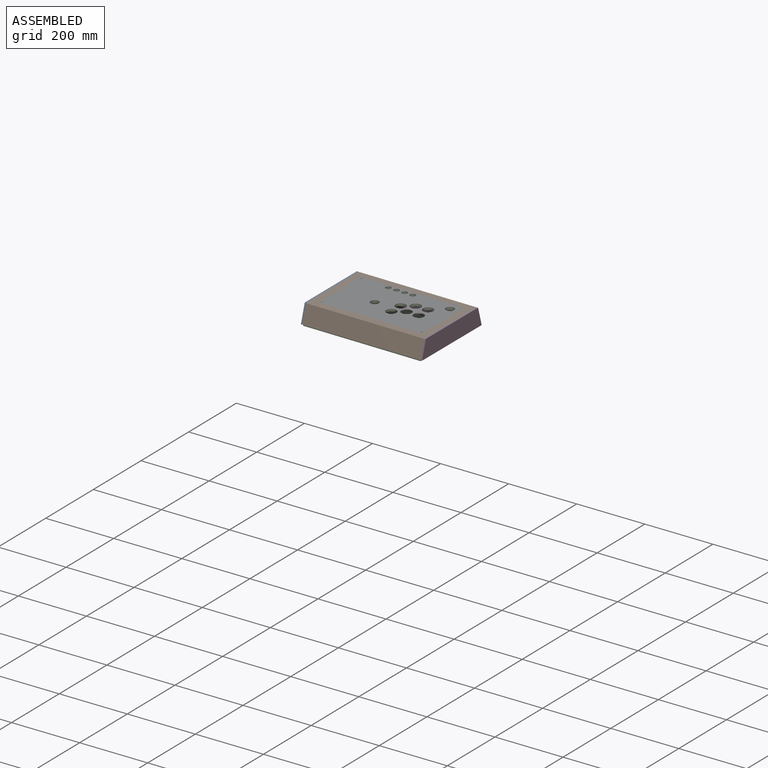
[diagram: assembled view]
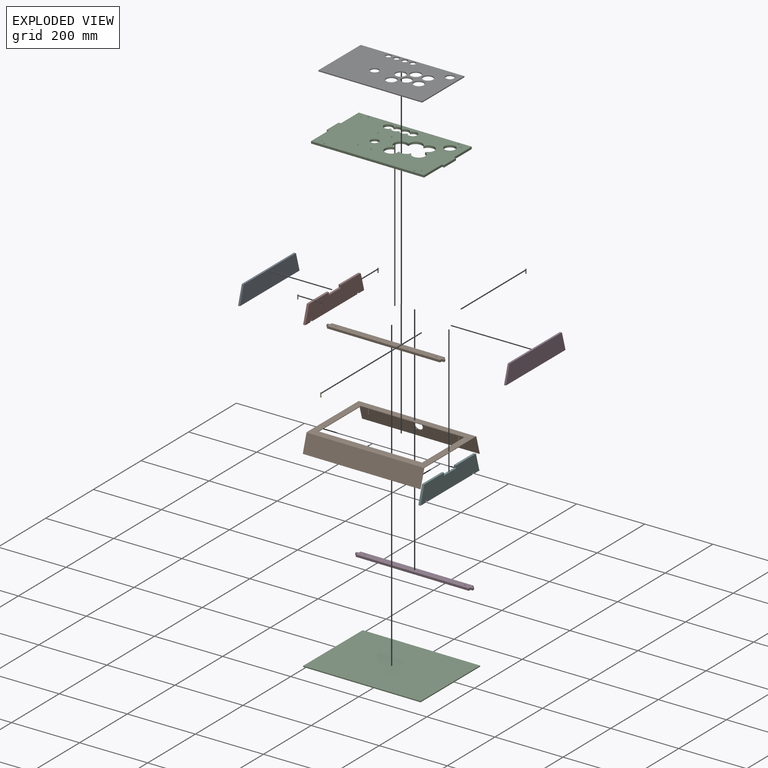
[diagram: exploded view]
GUIDED TOUR — MATED ASSEMBLY (Onshape document 57294a75e4b077d8431a446f, AutoMate assembly 57294a75e4b077d8431a446f_9091b2ce114d2cf201046c30_cba73d0e6dbbc84711c976d8_default)

This assembly has 14 components, labeled P0..P13 below (a component is one placed occurrence of a part; the same part can appear more than once), held together by 13 mates. A mate is a constraint between two components; its type names the relative motion it leaves free:
  FASTENED — locks the two components together rigidly (no relative motion).
Axis/direction vectors are unit vectors and 'through' points are millimeter coordinates, both in the assembly's world frame.

MATES
  1. FASTENED "Fastened 4": P6 <-> P2, direction (-0.005, -0.003, -1.000) through (135.00, -40.55, 36.70) mm
  2. FASTENED "Fastened 8": P0 <-> P6, direction (0.005, 0.003, 1.000) through (30.72, 52.47, 39.93) mm
  3. FASTENED "Fastened 9": P10 <-> P13, direction (0.005, 0.003, 1.000) through (349.32, -154.11, -13.25) mm
  4. FASTENED "Fastened 12": P1 <-> P8, direction (-1.000, 0.000, 0.005) through (4.64, -138.81, 40.61) mm
  5. FASTENED "Fastened 5": P12 <-> P6, direction (-0.005, -0.003, -1.000) through (323.51, -113.35, 38.99) mm
  6. FASTENED "Fastened 7": P4 <-> P6, direction (0.005, 0.003, 1.000) through (323.52, 52.45, 38.50) mm
  7. FASTENED "Fastened 10": P2 <-> P1, direction (0.005, 0.003, 1.000) through (309.56, -123.36, 36.09) mm
  8. FASTENED "Top Glue": P2 <-> P13, direction (-0.005, -0.003, -1.000) through (349.53, -30.48, 29.22) mm
  9. FASTENED "Fastened 11": P1 <-> P11, direction (1.000, 0.000, -0.005) through (349.59, 78.12, 38.28) mm
  10. FASTENED "Fastened 1": P7 <-> P3, direction (-0.005, -0.003, -1.000) through (4.43, 67.46, -5.82) mm
  11. FASTENED "Fastened 6": P5 <-> P6, direction (-0.005, -0.003, -1.000) through (30.71, -113.33, 40.42) mm
  12. FASTENED "Fastened 3": P9 <-> P13, direction (0.005, 0.003, 1.000) through (349.35, -128.61, -6.93) mm
  13. FASTENED "Fastened 2": P9 <-> P7, direction (0.005, 0.003, 1.000) through (4.42, -128.58, -5.24) mm

ASSEMBLY ORDER
  1. P7 — the base component [order verified]
  2. P1 [order verified]
  3. P2 [order verified]
  4. P13 [order verified]
  5. P4 [order verified]
  6. P12 [order verified]
  7. P0 [order verified]
  8. P5 [order verified]
  9. P6 [order verified]
  10. P9 [order verified]
  11. P3 [order verified]
  12. P10 [order verified]
  13. P8 [order verified]
  14. P11 [order verified]
Order-tag legend:
  [order verified] — this step's position reverses a verified removal order: the component was checked to insert without passing through the ones already placed.

Of the 14 components, 0 carry the full construction recipe — the FeatureScript program that regenerates the part's solid from scratch; the rest are supplied as boundary geometry only.
Because this assembly has more than 12 components, the tour below covers the 12 most significant ones individually (every recipe-attached component first, then the largest by part volume), in assembly order; the remaining 2 are summarized together in a grouped section at the end.
Each toured component is shown spotlighted twice — in the assembled view, then in the exploded view, where a leader line traces a displaced component back to its assembled socket (saturated green if recipe-attached, orange if geometry-only; every other component desaturated gray) — followed by its recipe or geometry summary and the mates that hold it.
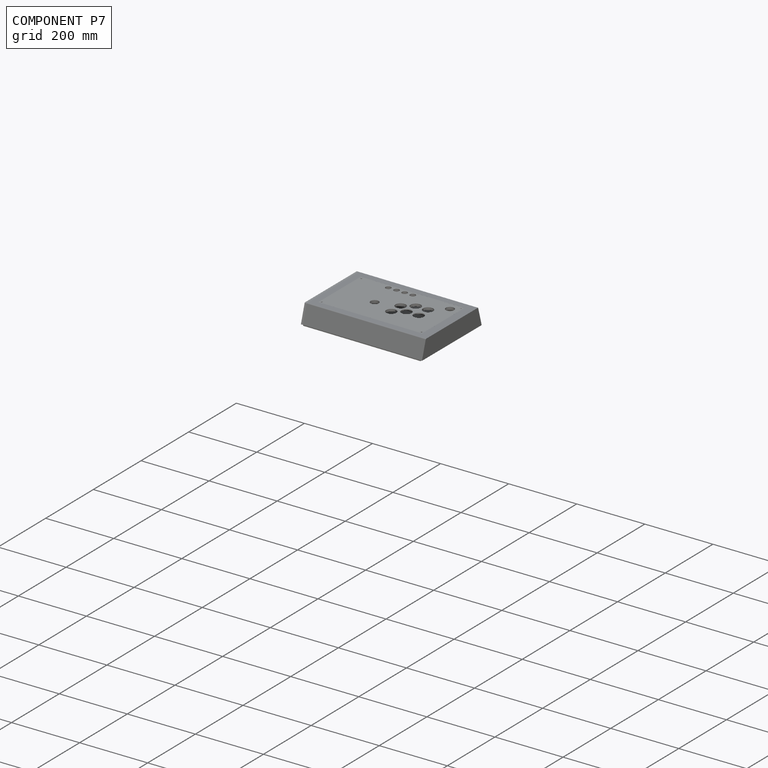
[diagram: component P7 — assembled]
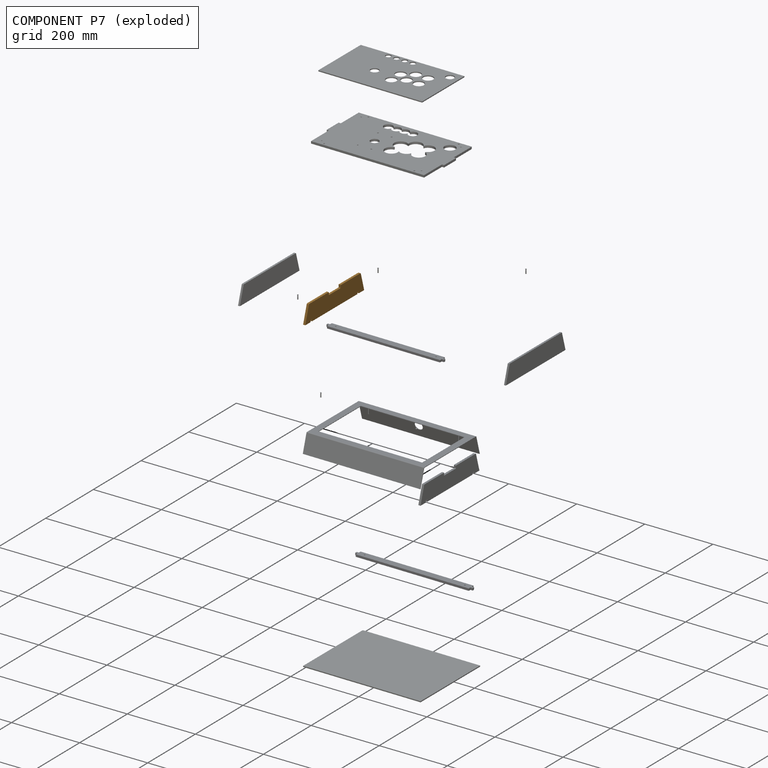
[diagram: component P7 — exploded]
COMPONENT P7 — geometry summary (no construction recipe available for this part):
  bounding box: 247.0 x 50.6 x 6.4 mm
  B-rep topology: 1 solid, 20 faces, 108 edges
  volume: 72184 mm^3 (90% of its bounding box)
  symmetry: 2-fold rotationally symmetric about the z axis; mirror-symmetric across its x mid-plane, y mid-plane
Held by: FASTENED mate "Fastened 1" to P3; FASTENED mate "Fastened 2" to P9.
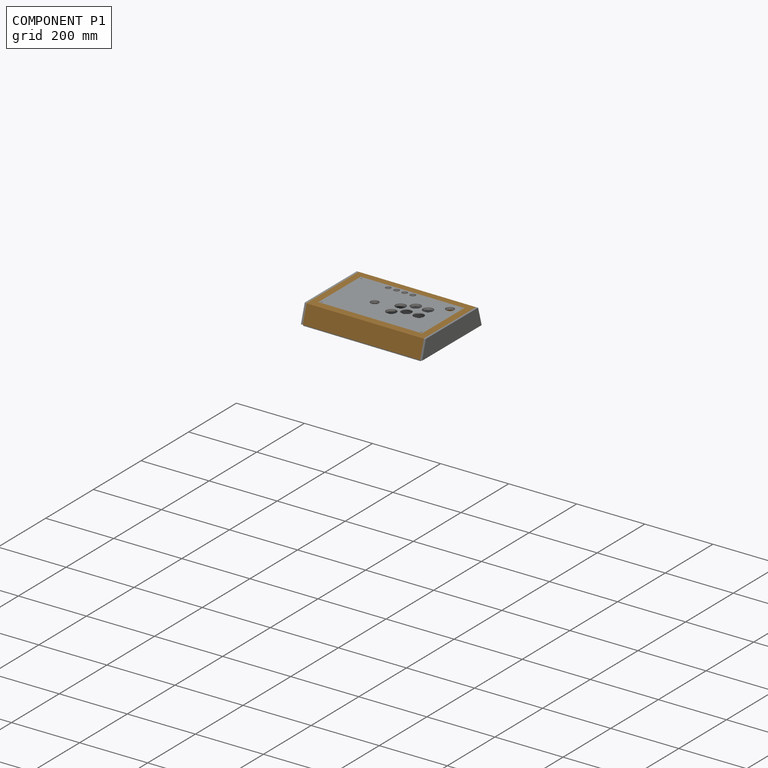
[diagram: component P1 — assembled]
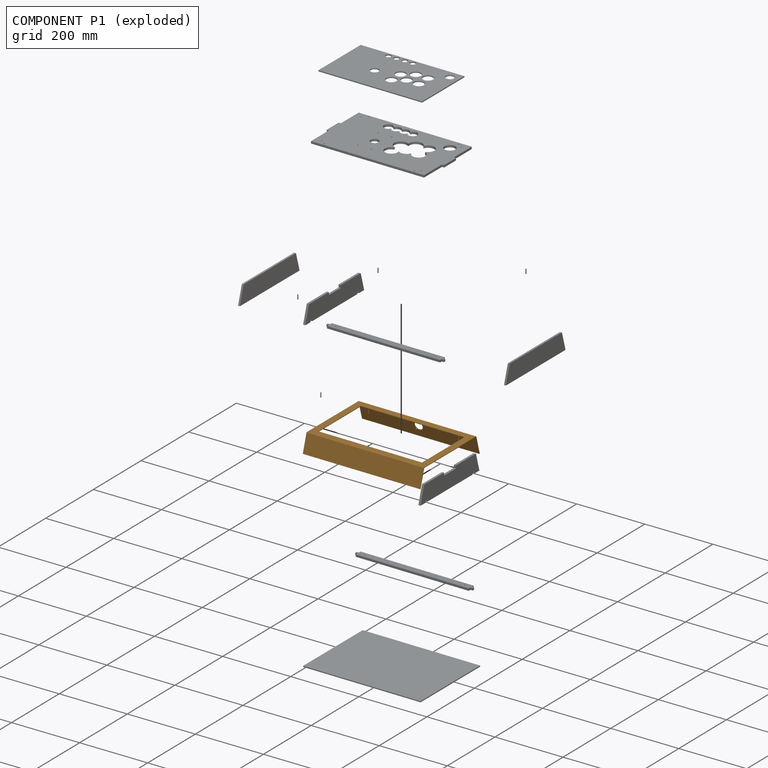
[diagram: component P1 — exploded]
COMPONENT P1 — geometry summary (no construction recipe available for this part):
  bounding box: 344.9 x 250.0 x 52.2 mm
  B-rep topology: 1 solid, 29 faces, 138 edges
  volume: 91745 mm^3 (2% of its bounding box)
  symmetry: mirror-symmetric across its x mid-plane
Held by: FASTENED mate "Fastened 12" to P8; FASTENED mate "Fastened 10" to P2; FASTENED mate "Fastened 11" to P11.
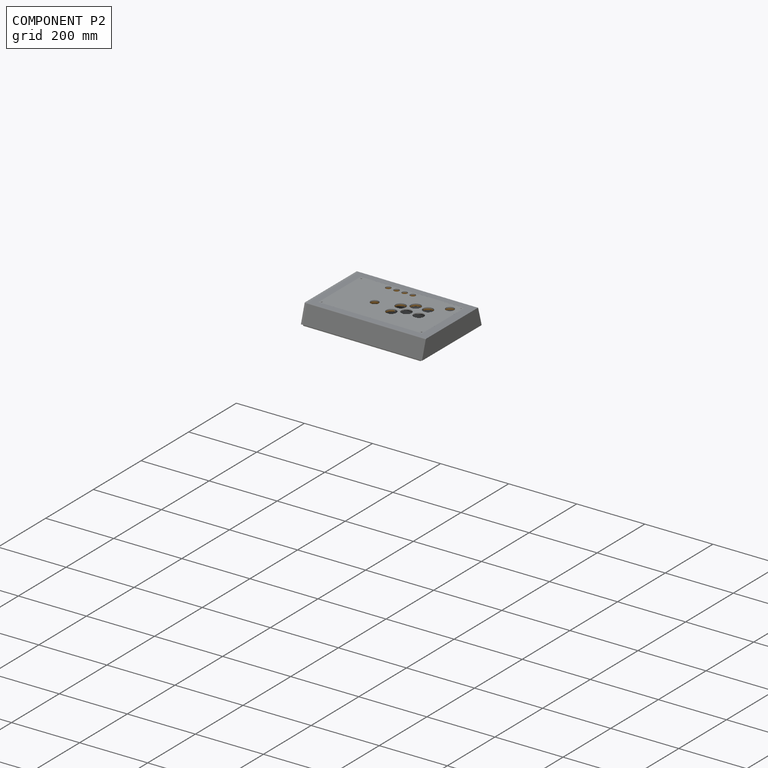
[diagram: component P2 — assembled]
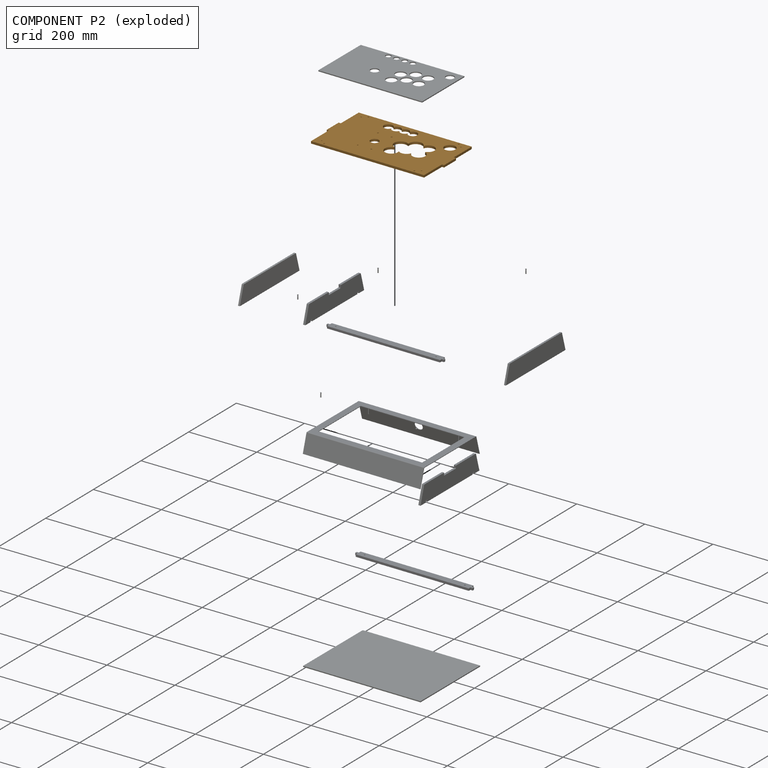
[diagram: component P2 — exploded]
COMPONENT P2 — geometry summary (no construction recipe available for this part):
  bounding box: 344.9 x 200.0 x 6.4 mm
  B-rep topology: 1 solid, 42 faces, 240 edges
  volume: 361368 mm^3 (82% of its bounding box)
  symmetry: mirror-symmetric across its z mid-plane
Held by: FASTENED mate "Fastened 4" to P6; FASTENED mate "Fastened 10" to P1; FASTENED mate "Top Glue" to P13.
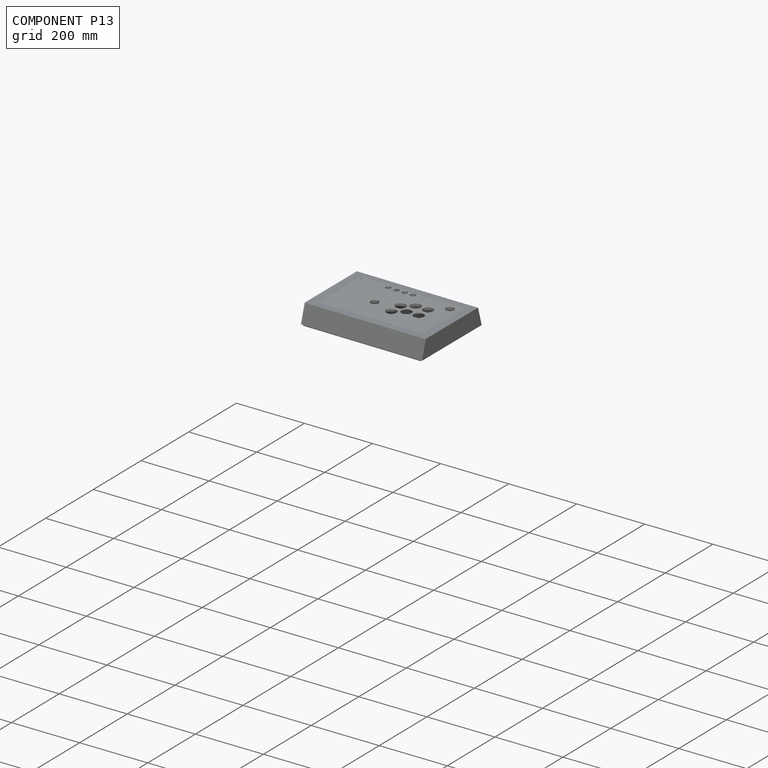
[diagram: component P13 — assembled]
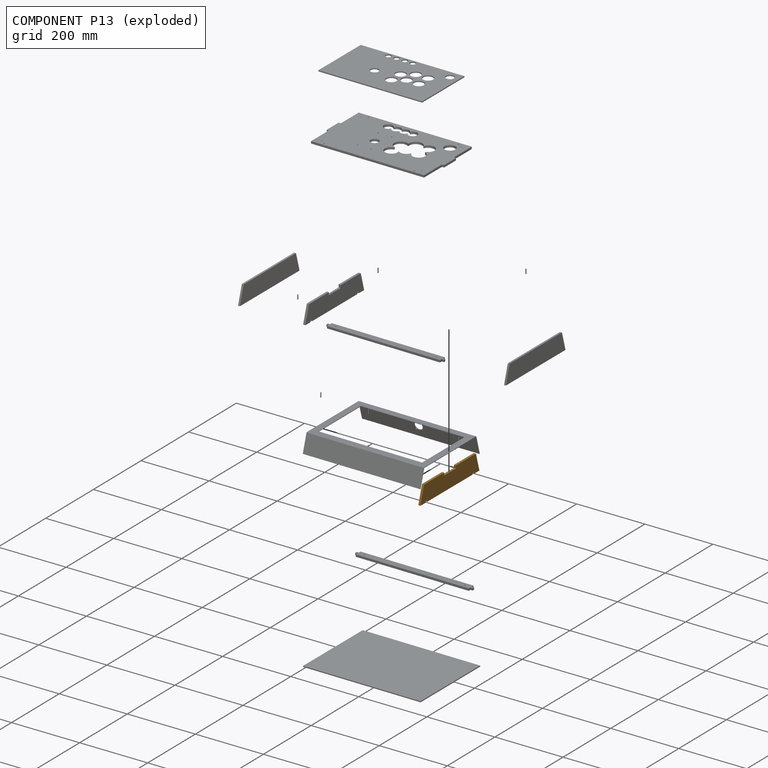
[diagram: component P13 — exploded]
COMPONENT P13 — geometry summary (no construction recipe available for this part):
  bounding box: 247.0 x 50.6 x 6.4 mm
  B-rep topology: 1 solid, 20 faces, 108 edges
  volume: 72184 mm^3 (90% of its bounding box)
  symmetry: 2-fold rotationally symmetric about the z axis; mirror-symmetric across its x mid-plane, y mid-plane
Held by: FASTENED mate "Fastened 9" to P10; FASTENED mate "Top Glue" to P2; FASTENED mate "Fastened 3" to P9.
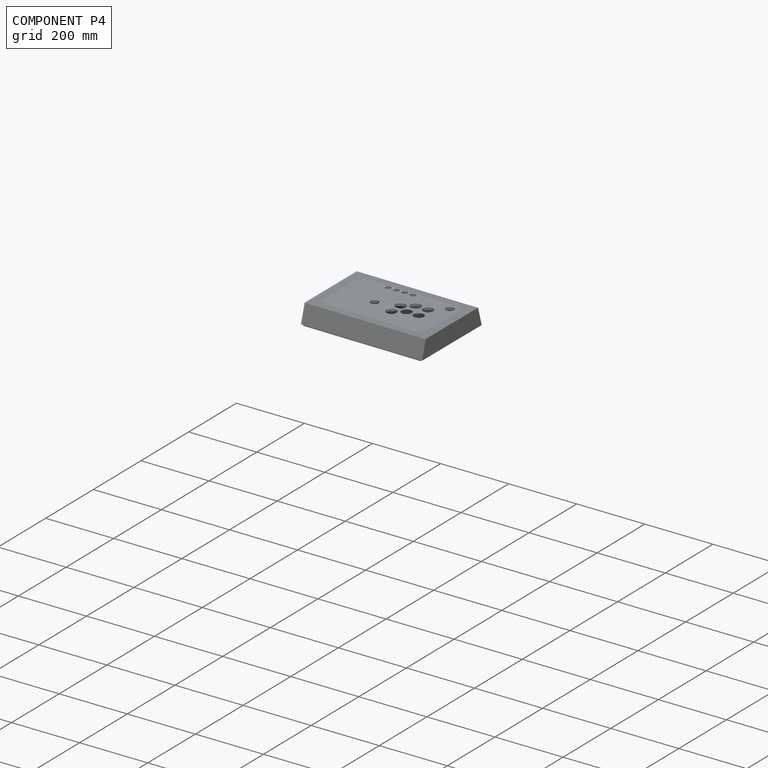
[diagram: component P4 — assembled]
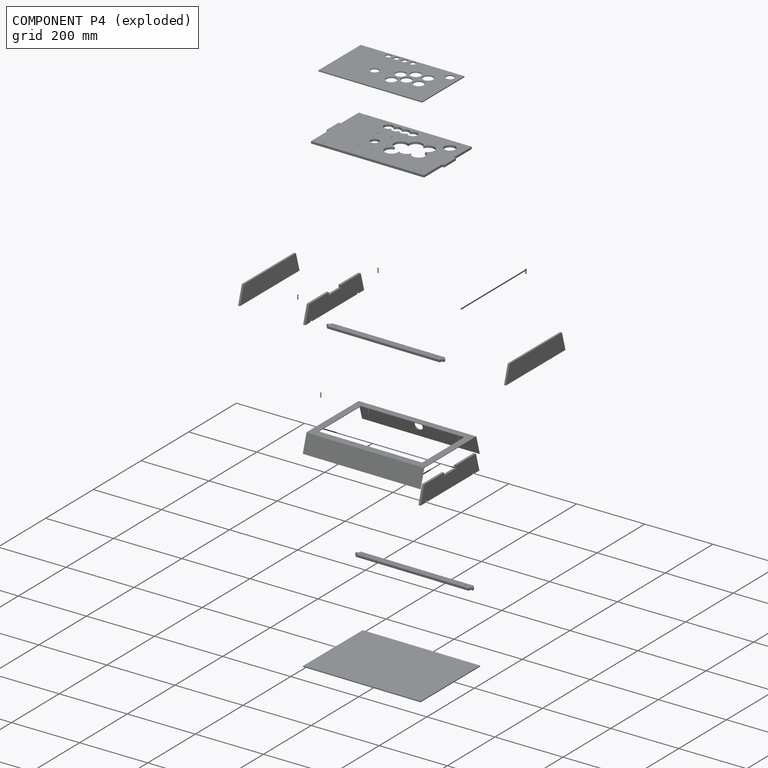
[diagram: component P4 — exploded]
COMPONENT P4 — geometry summary (no construction recipe available for this part):
  bounding box: 12.7 x 4.2 x 4.2 mm
  B-rep topology: 1 solid, 37 faces, 206 edges
  volume: 76 mm^3 (33% of its bounding box)
  symmetry: 4-fold rotationally symmetric about the x axis; mirror-symmetric across its y mid-plane, z mid-plane
Held by: FASTENED mate "Fastened 7" to P6.
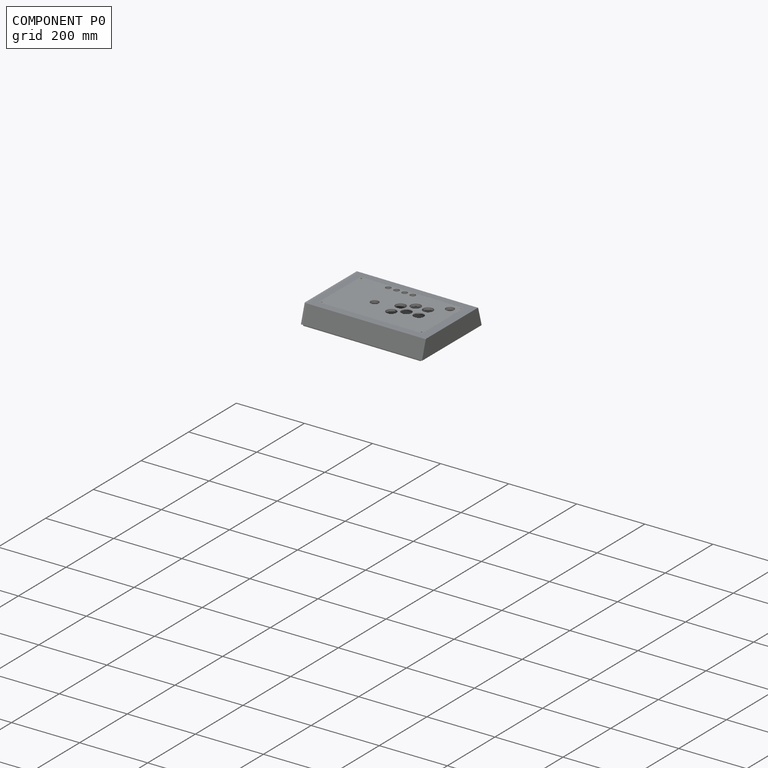
[diagram: component P0 — assembled]
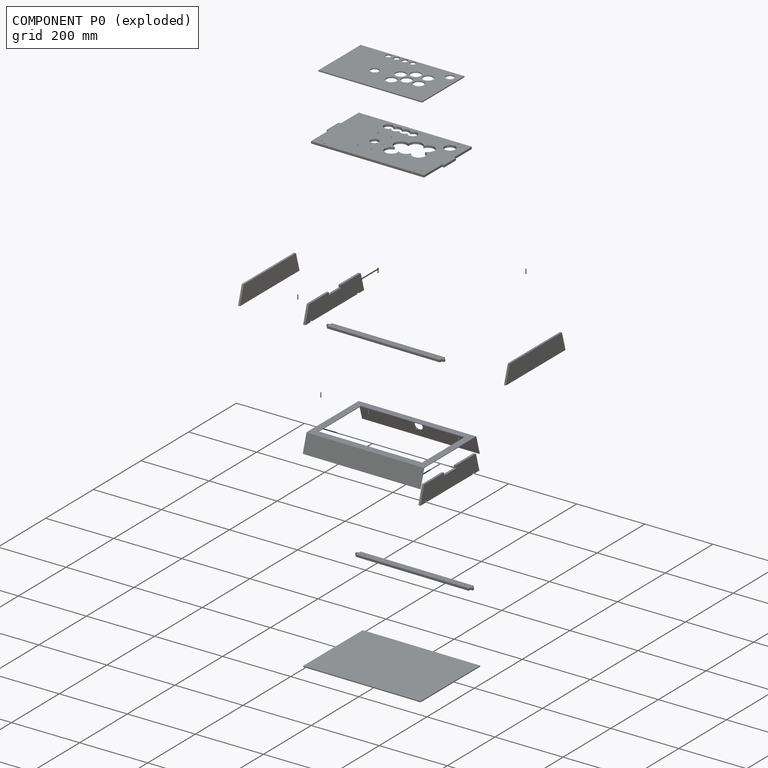
[diagram: component P0 — exploded]
COMPONENT P0 — geometry summary (no construction recipe available for this part):
  bounding box: 12.7 x 4.2 x 4.2 mm
  B-rep topology: 1 solid, 37 faces, 206 edges
  volume: 76 mm^3 (33% of its bounding box)
  symmetry: 4-fold rotationally symmetric about the x axis; mirror-symmetric across its y mid-plane, z mid-plane
Held by: FASTENED mate "Fastened 8" to P6.
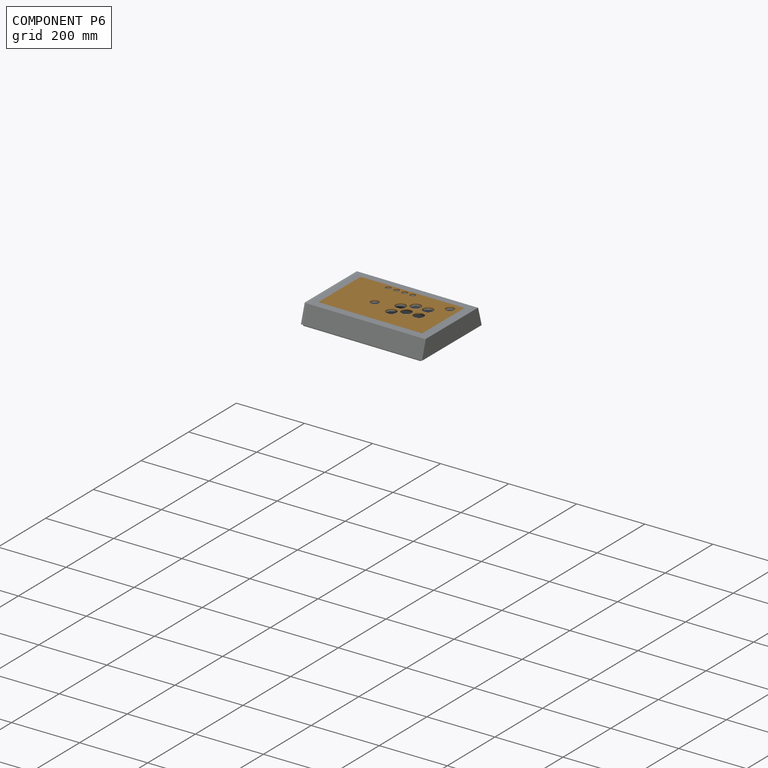
[diagram: component P6 — assembled]
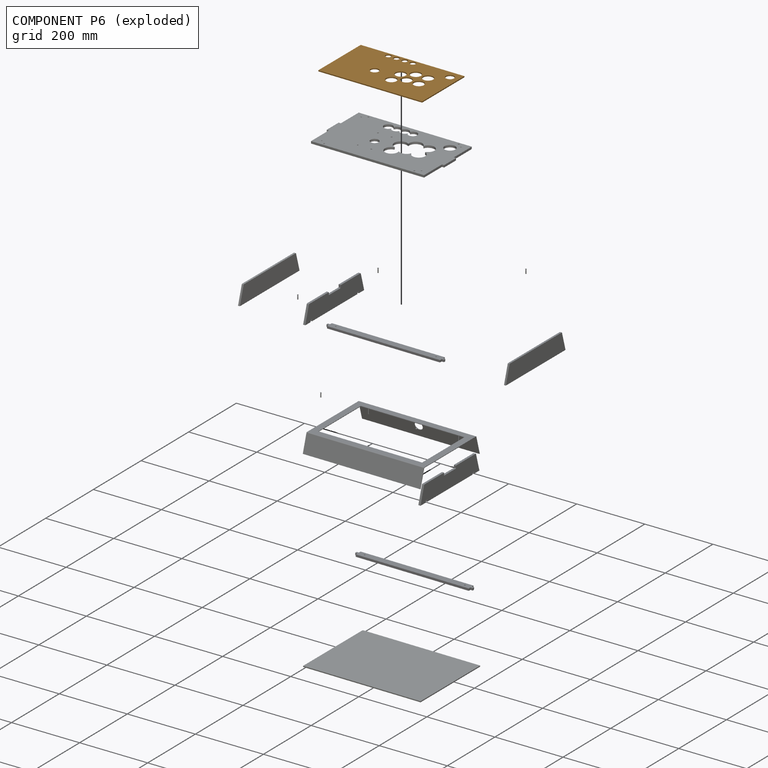
[diagram: component P6 — exploded]
COMPONENT P6 — geometry summary (no construction recipe available for this part):
  bounding box: 304.8 x 177.8 x 3.0 mm
  B-rep topology: 1 solid, 26 faces, 136 edges
  volume: 144549 mm^3 (89% of its bounding box)
  symmetry: mirror-symmetric across its z mid-plane
Held by: FASTENED mate "Fastened 4" to P2; FASTENED mate "Fastened 8" to P0; FASTENED mate "Fastened 5" to P12; FASTENED mate "Fastened 7" to P4; FASTENED mate "Fastened 6" to P5.
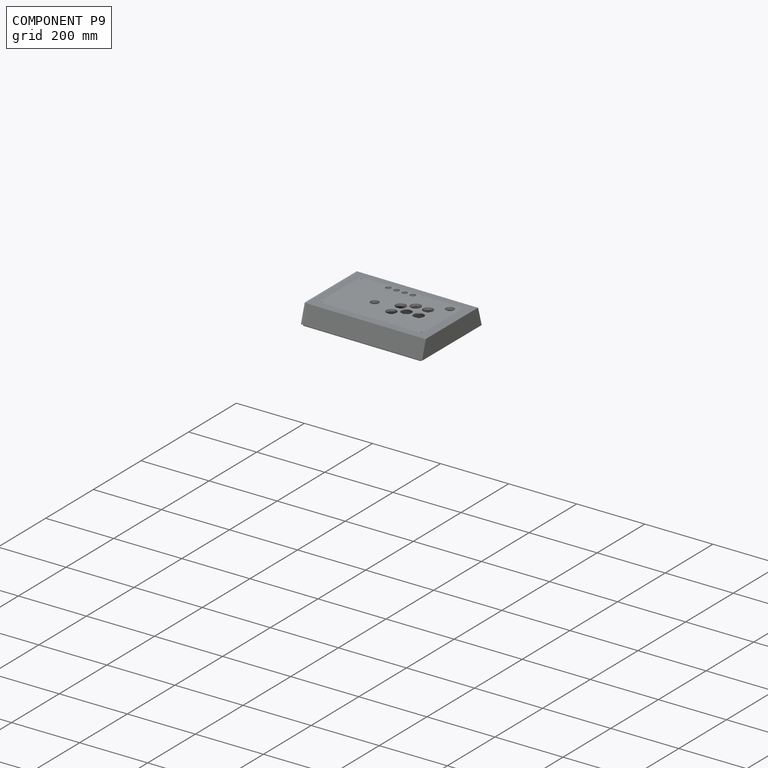
[diagram: component P9 — assembled]
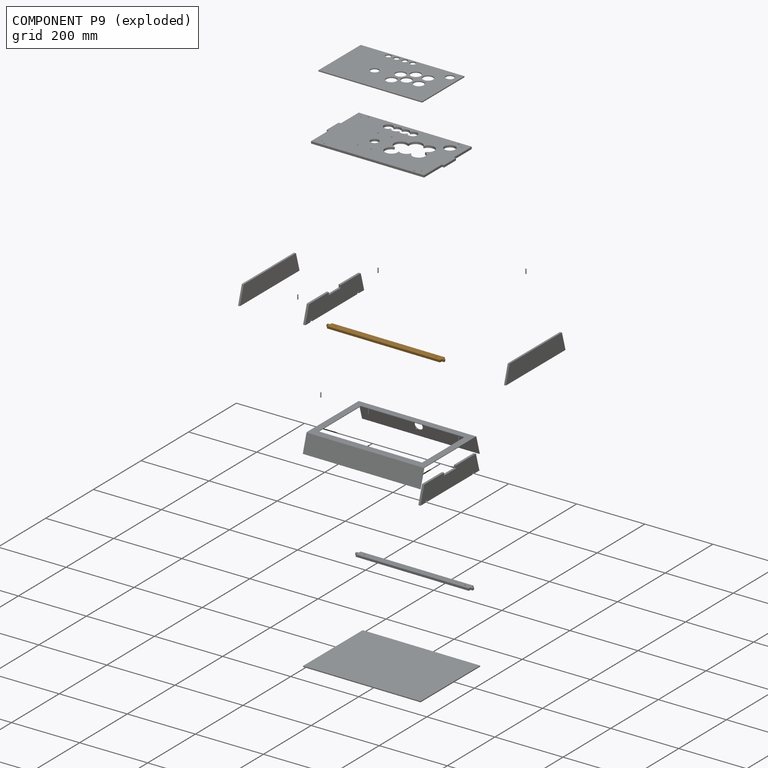
[diagram: component P9 — exploded]
COMPONENT P9 — geometry summary (no construction recipe available for this part):
  bounding box: 344.9 x 20.0 x 6.4 mm
  B-rep topology: 1 solid, 16 faces, 88 edges
  volume: 42859 mm^3 (97% of its bounding box)
  symmetry: 2-fold rotationally symmetric about the x axis; 2-fold rotationally symmetric about the y axis; 2-fold rotationally symmetric about the z axis; mirror-symmetric across its x mid-plane, y mid-plane, z mid-plane
Held by: FASTENED mate "Fastened 3" to P13; FASTENED mate "Fastened 2" to P7.
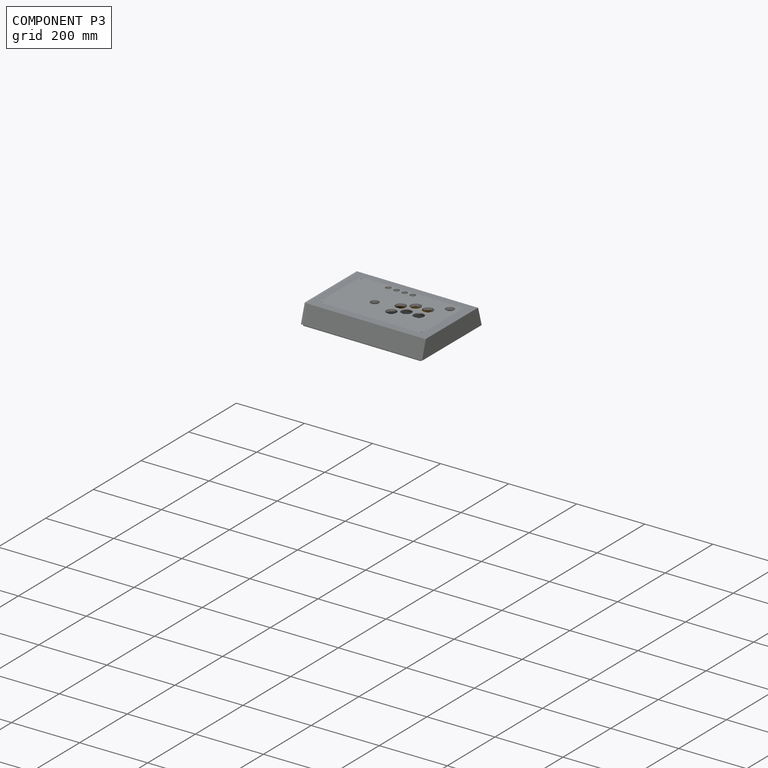
[diagram: component P3 — assembled]
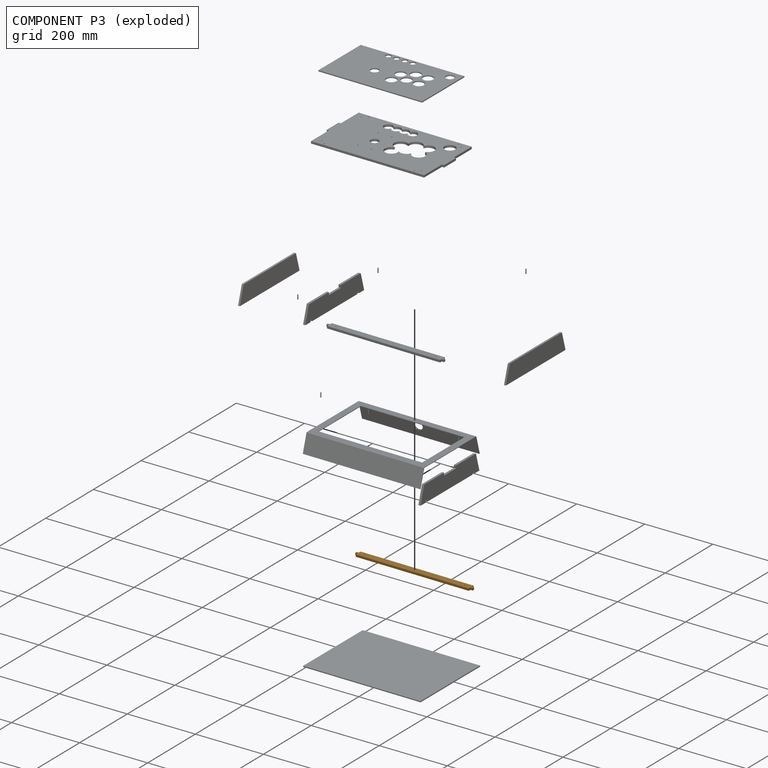
[diagram: component P3 — exploded]
COMPONENT P3 — geometry summary (no construction recipe available for this part):
  bounding box: 344.9 x 20.0 x 6.4 mm
  B-rep topology: 1 solid, 16 faces, 88 edges
  volume: 42859 mm^3 (97% of its bounding box)
  symmetry: 2-fold rotationally symmetric about the x axis; 2-fold rotationally symmetric about the y axis; 2-fold rotationally symmetric about the z axis; mirror-symmetric across its x mid-plane, y mid-plane, z mid-plane
Held by: FASTENED mate "Fastened 1" to P7.
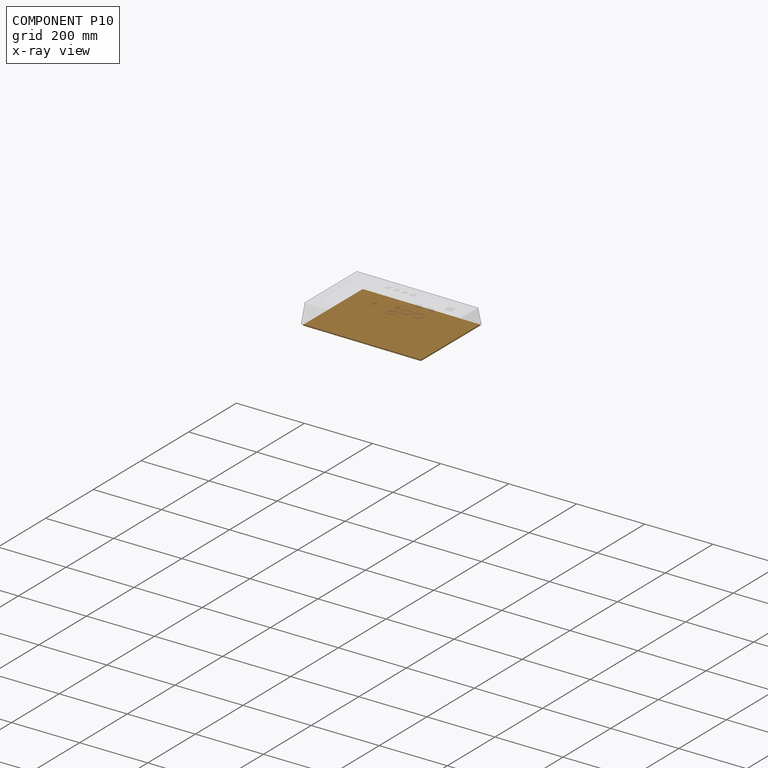
[diagram: component P10 — x-ray view]
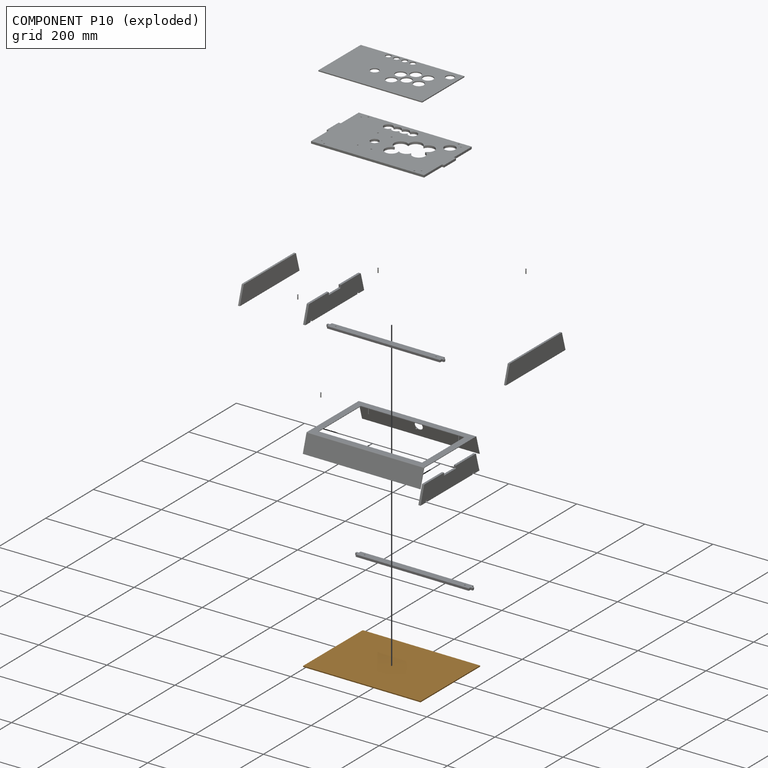
[diagram: component P10 — exploded]
COMPONENT P10 — geometry summary (no construction recipe available for this part):
  bounding box: 344.9 x 250.0 x 3.0 mm
  B-rep topology: 1 solid, 6 faces, 24 edges
  volume: 258743 mm^3 (100% of its bounding box)
  symmetry: 2-fold rotationally symmetric about the x axis; 2-fold rotationally symmetric about the y axis; 2-fold rotationally symmetric about the z axis; mirror-symmetric across its x mid-plane, y mid-plane, z mid-plane
Held by: FASTENED mate "Fastened 9" to P13.
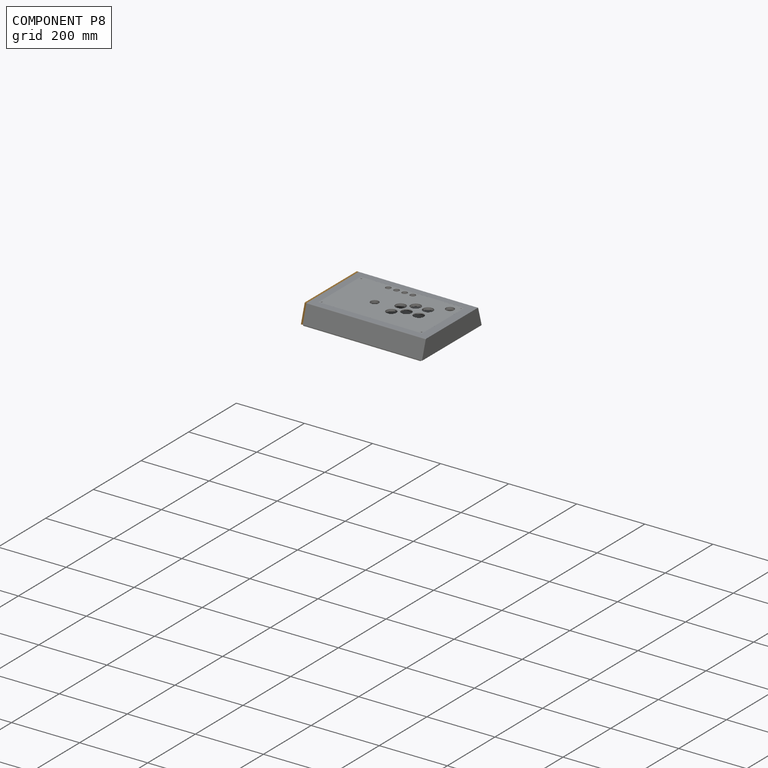
[diagram: component P8 — assembled]
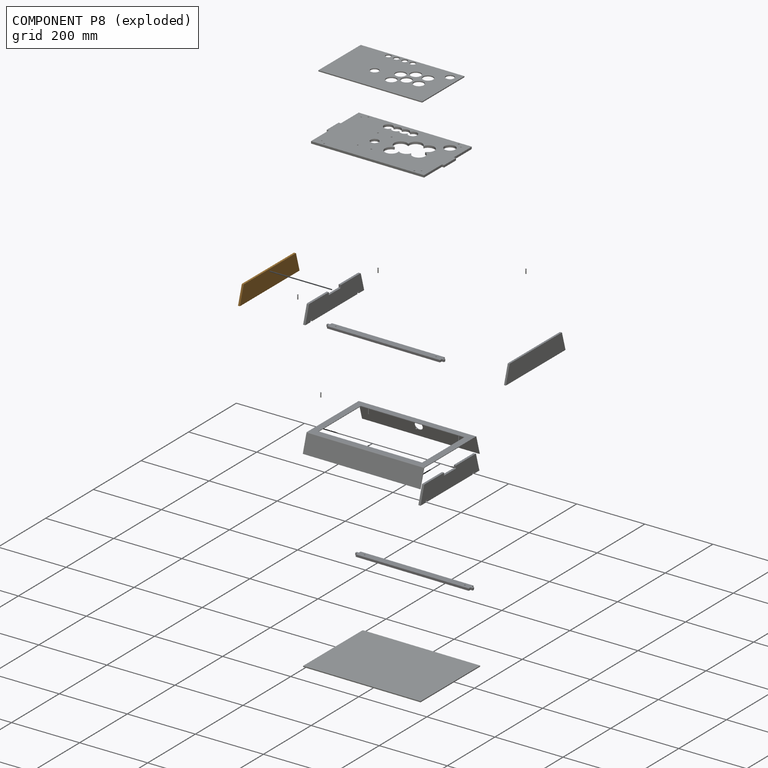
[diagram: component P8 — exploded]
COMPONENT P8 — geometry summary (no construction recipe available for this part):
  bounding box: 250.3 x 52.2 x 5.4 mm
  B-rep topology: 1 solid, 8 faces, 36 edges
  volume: 66215 mm^3 (94% of its bounding box)
  symmetry: 2-fold rotationally symmetric about the z axis; mirror-symmetric across its x mid-plane, y mid-plane
Held by: FASTENED mate "Fastened 12" to P1.
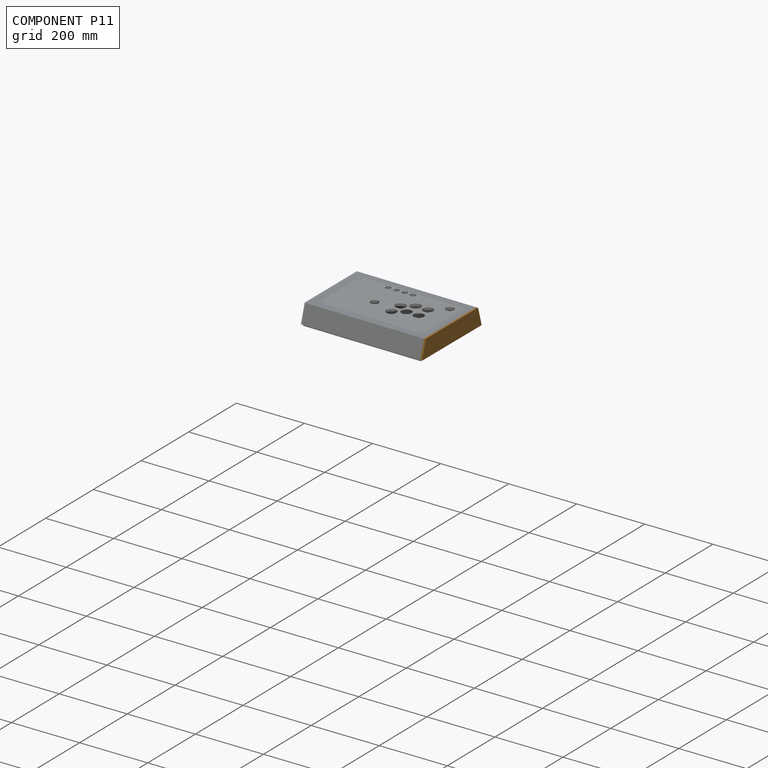
[diagram: component P11 — assembled]
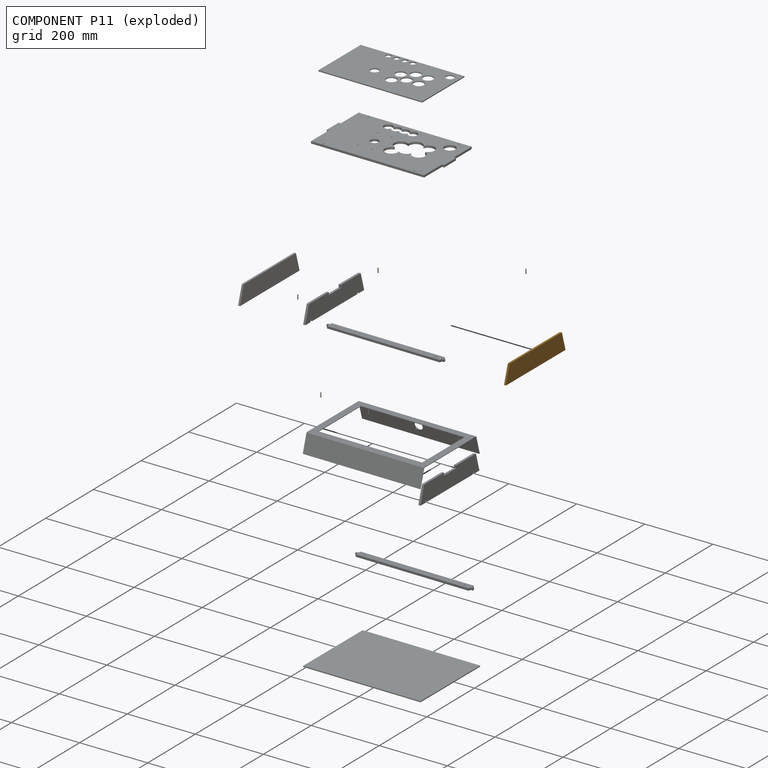
[diagram: component P11 — exploded]
COMPONENT P11 — geometry summary (no construction recipe available for this part):
  bounding box: 250.3 x 52.2 x 5.4 mm
  B-rep topology: 1 solid, 8 faces, 36 edges
  volume: 66215 mm^3 (94% of its bounding box)
  symmetry: 2-fold rotationally symmetric about the z axis; mirror-symmetric across its x mid-plane, y mid-plane
Held by: FASTENED mate "Fastened 11" to P1.
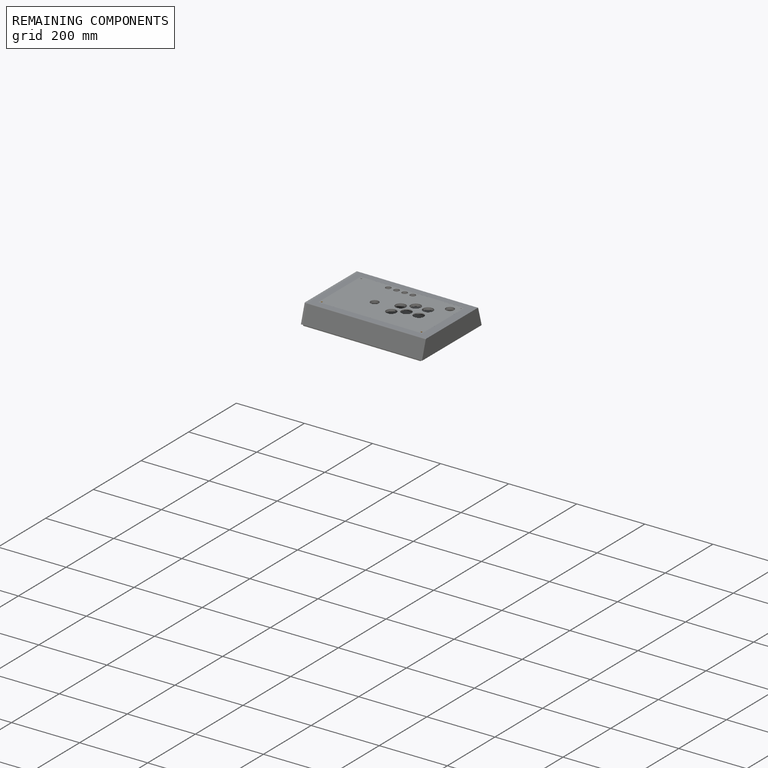
[diagram: remaining components — assembled]
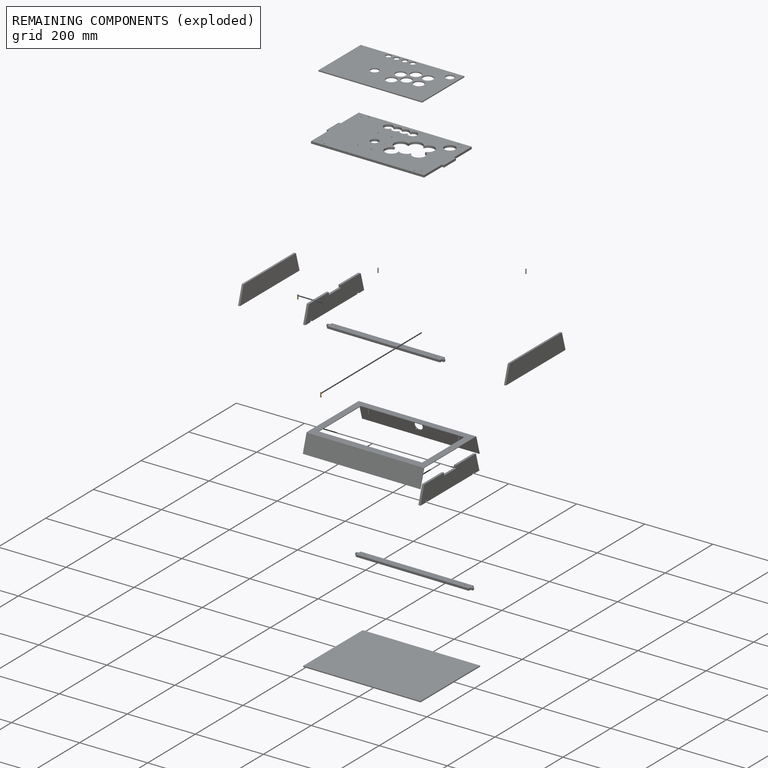
[diagram: remaining components — exploded]
REMAINING COMPONENTS (grouped) — the 2 components below fall outside the per-component tour by the significance rule stated above; both spotlight views highlight the whole group.
  P12: bounding box 12.7 x 4.2 x 4.2 mm, volume 76 mm^3. Held by: FASTENED mate "Fastened 5" to P6.
  P5: bounding box 12.7 x 4.2 x 4.2 mm, volume 76 mm^3. Held by: FASTENED mate "Fastened 6" to P6.
PROVENANCE & LICENSES
Assembly (occurrences, transforms, mates, per-part STEP geometry): AutoMate dataset, Zenodo record 7776208, CC0.
Construction recipes: CADFS (HuggingFace VladPyatov/CADFS, CC-BY-4.0, layered over the ABC dataset), FeatureScript reconstruction programs keyed by ABC model id.
Join: ABC meta listings map ABC model id -> Onshape documentId; within a shared document, parts are matched by geometric signature (bounding-box dims + volume at 0.1% relative tolerance, exact B-rep face/solid counts).
Verification: no recipe attachments in this assembly (14 components, all geometry-only).
Renders: orthographic iso camera (az 35 / el 25); the floor grid conveys scale (grid pitch printed in each image; no ruler). In the exploded view each component is displaced by its stored offset vector: the offsets alone carry the explosion direction (mate normal/axis signs are not orientation cues and do not encode it), and separation distances are assigned per mate-chain, not proportionally to assembly-order depth.
